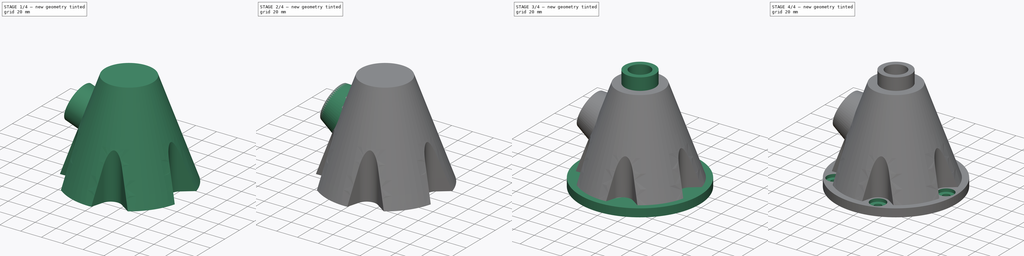
[diagram: build sequence overview — one tinted view per stage of 4, left to right]
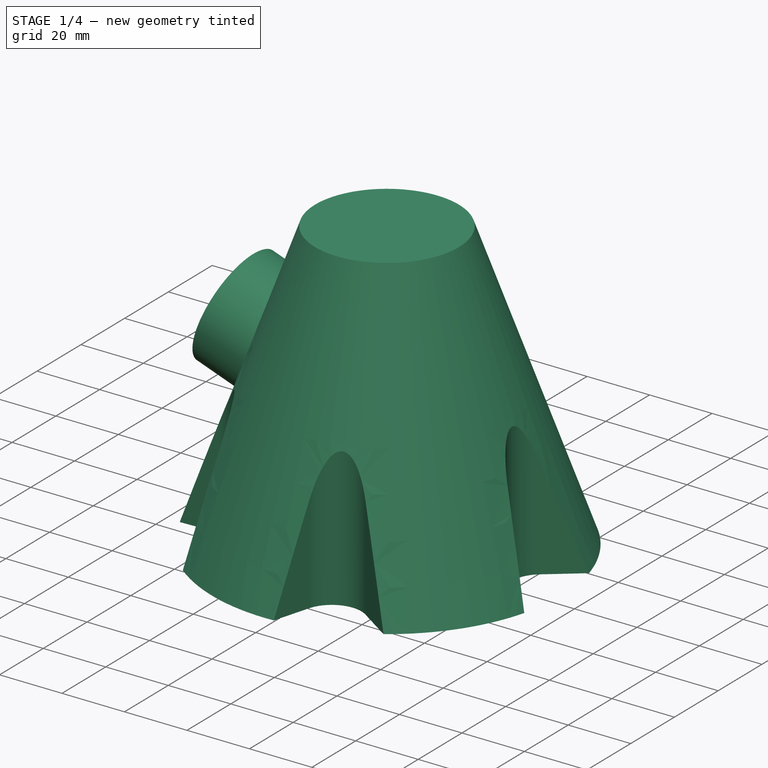
[diagram: stage 1 of 4 — iso view after this stage's code; geometry added in this stage tinted green]
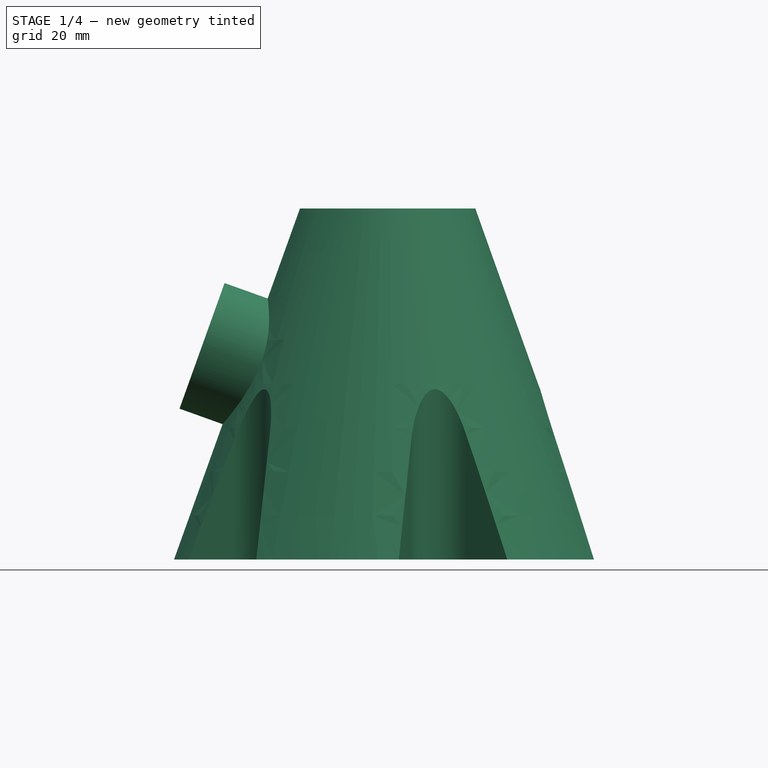
[diagram: stage 1 of 4 — front view after this stage's code; geometry added in this stage tinted green]
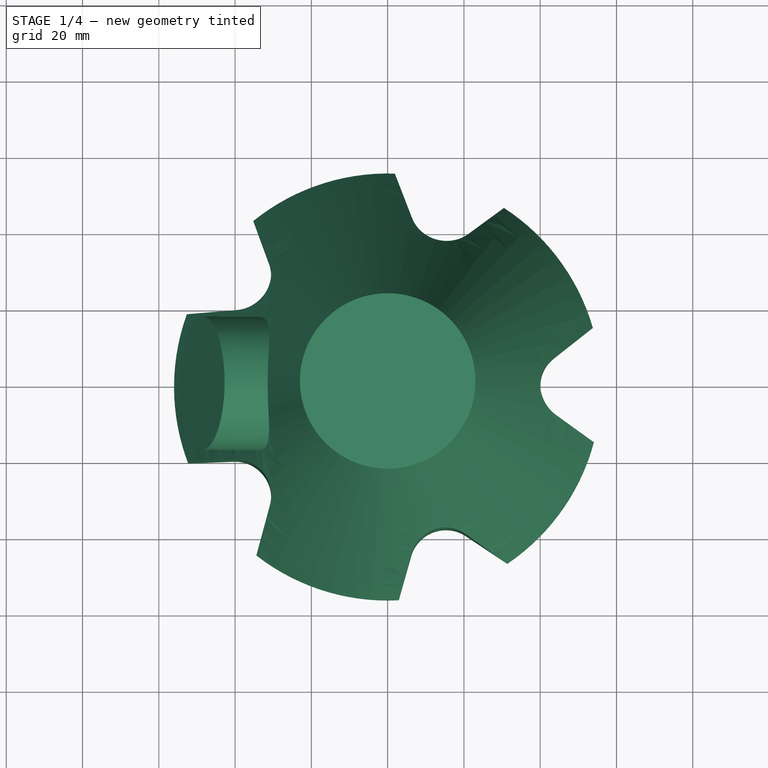
[diagram: stage 1 of 4 — top view after this stage's code; geometry added in this stage tinted green]
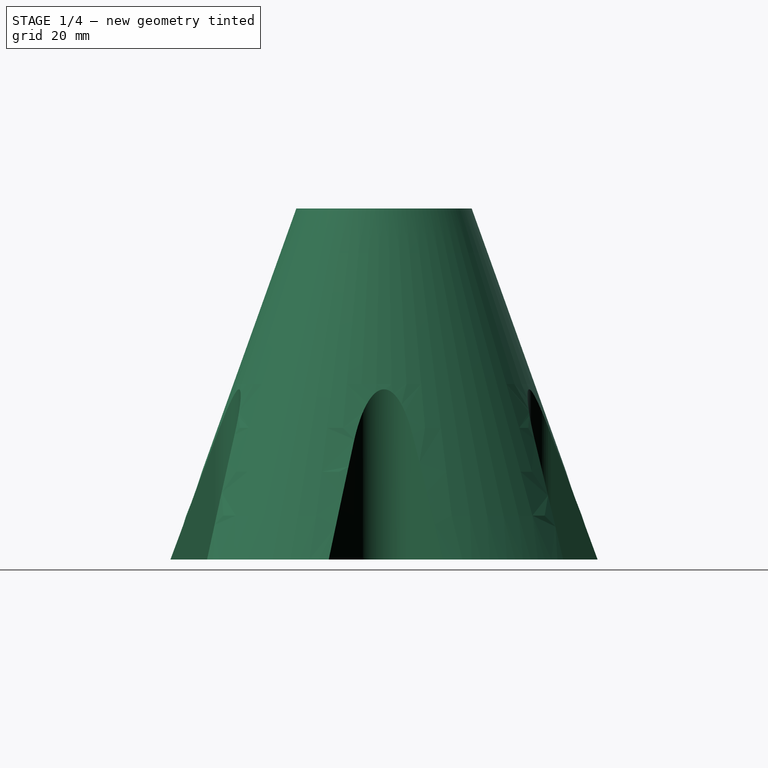
[diagram: stage 1 of 4 — right view after this stage's code; geometry added in this stage tinted green]
FCSTD DOCUMENT  (FreeCAD 0.21R33771 (Git))
Label: ex19
License: All rights reserved
LicenseURL: https://en.wikipedia.org/wiki/All_rights_reserved
objects: Sketcher::SketchObject×11, PartDesign::Pocket×3, PartDesign::PolarPattern×3, PartDesign::Pad×3, PartDesign::Revolution×1, PartDesign::Plane×1, PartDesign::Draft×1, PartDesign::SubtractiveLoft×1, PartDesign::Groove×1, PartDesign::Hole×1, PartDesign::Body×1
note: 38 computed .brp shape members not serialized (recipe doc carries the construction recipe); baked Part::Feature solids carry a one-line shape summary decoded from their .brp

FEATURE [Sketcher::SketchObject] Sketch
  FullyConstrained = true
  MapMode = 5
  Placement = pos=(0,0,0) rot=(1,0,0;1.5708rad)
  Support = -> [XZ_Plane]
  sketch-geometry (4):
    g0: LineSegment StartX=0 StartY=92 StartZ=0 EndX=-23 EndY=92 EndZ=0
    g1: LineSegment StartX=-23 StartY=92 StartZ=0 EndX=-56 EndY=0 EndZ=0
    g2: LineSegment StartX=-56 StartY=0 StartZ=0 EndX=0 EndY=0 EndZ=0
    g3: LineSegment StartX=0 StartY=0 StartZ=0 EndX=0 EndY=92 EndZ=0
  constraints (11):
    c: PointOnObject(g0,g-2)
    c: Horizontal(g0)
    c: Coincident(g0,g1)
    c: PointOnObject(g1,g-1)
    c: Coincident(g1,g2)
    c: Coincident(g2,g-1)
    c: Coincident(g2,g3)
    c: Coincident(g3,g0)
    c: DistanceX(g0,g0) = 23
    c: DistanceX(g2,g2) = 56
    c: DistanceY(g3,g3) = 92
FEATURE [PartDesign::Revolution] Revolution
  Angle = 360
  Axis = (0,2e-16,1)
  Base = (0,0,0)
  Placement = pos=(0,0,0) rot=(1,0,0;1.5708rad)
  Profile = -> Sketch
  ReferenceAxis = -> Sketch [V_Axis]
FEATURE [Sketcher::SketchObject] Sketch001
  ExternalGeometry = -> [Revolution]
  FullyConstrained = false
  MapMode = 5
  Placement = pos=(0,2.04e-14,92) rot=(0,0,1;3.14159rad)
  Support = -> [Revolution]
  sketch-geometry (6):
    g0: ArcOfCircle CenterX=-49.5 CenterY=0 CenterZ=0 NormalX=0 NormalY=0 NormalZ=1 AngleXU=0 Radius=9.5 StartAngle=5.37985 EndAngle=7.24138
    g1: LineSegment StartX=-44.0375 StartY=7.77247 StartZ=0 EndX=-69.1571 EndY=24.5614 EndZ=0
    g2: LineSegment StartX=-43.6195 StartY=-7.46125 StartZ=0 EndX=-69.1571 EndY=-27.5883 EndZ=0
    g3: LineSegment StartX=-69.1571 StartY=24.5614 StartZ=0 EndX=-69.1571 EndY=-27.5883 EndZ=0
    g4: GeomPoint X=-59 Y=0 Z=0
    g5: GeomPoint X=-56 Y=0 Z=0
  constraints (13):
    c: PointOnObject(g0,g-1)
    c: Diameter(g0) = 19
    c: Coincident(g3,g1)
    c: Coincident(g3,g2)
    c: Vertical(g3)
    c: PointOnObject(g4,g0)
    c: PointOnObject(g4,g-1)
    c: PointOnObject(g5,g-3)
    c: PointOnObject(g5,g-1)
    c: DistanceX(g5,g0) = 6.5
    c: Coincident(g0,g1)
    c: Tangent(g0,g2) = 1.5708
    c: Angle(g1,g2) = 1.25664
FEATURE [PartDesign::Pocket] Pocket
  BaseFeature = -> Revolution
  Direction = (0,-2e-16,-1)
  Length = 59
  Length2 = 5
  Midplane = true
  Placement = pos=(0,0,0) rot=(1,0,0;1.5708rad)
  Profile = -> Sketch001
  ReferenceAxis = -> Sketch001 [N_Axis]
  Refine = true
  Type = 1
FEATURE [PartDesign::PolarPattern] PolarPattern
  Angle = 360
  Axis = -> Sketch001 [N_Axis]
  BaseFeature = -> Pocket
  Occurrences = 5
  Originals = -> [Pocket]
  Placement = pos=(0,0,0) rot=(1,0,0;1.5708rad)
  Refine = true
FEATURE [Sketcher::SketchObject] Sketch002
  ExternalGeometry = -> [PolarPattern]
  FullyConstrained = true
  MapMode = 5
  Placement = pos=(0,0,0) rot=(1,0,0;1.5708rad)
  Support = -> [XZ_Plane]
  sketch-geometry (9):
    g0: LineSegment StartX=-23 StartY=92 StartZ=0 EndX=-56 EndY=0 EndZ=0
    g1: LineSegment StartX=-37.3663 StartY=51.9484 StartZ=0 EndX=-48.6617 EndY=56 EndZ=0
    g2: LineSegment StartX=-43.9553 StartY=54.3118 StartZ=0 EndX=-39.3421 EndY=67.1729 EndZ=0
    g3: LineSegment StartX=-39.3421 StartY=67.1729 StartZ=0 EndX=-19.6151 EndY=65.5397 EndZ=0
    g4: LineSegment StartX=-19.6151 StartY=65.5397 StartZ=0 EndX=-25.958 EndY=47.8563 EndZ=0
    g5: LineSegment StartX=-25.958 StartY=47.8563 StartZ=0 EndX=-43.9553 EndY=54.3118 EndZ=0
    g6: LineSegment StartX=-48.6617 StartY=56 StartZ=0 EndX=-42.7531 EndY=72.4724 EndZ=0
    g7: LineSegment StartX=-42.7531 StartY=72.4724 StartZ=0 EndX=-17.8674 EndY=70.4121 EndZ=0
    g8: LineSegment StartX=-17.8674 StartY=70.4121 StartZ=0 EndX=-19.6151 EndY=65.5397 EndZ=0
  constraints (25):
    c: Coincident(g0,g-3)
    c: Coincident(g0,g-5)
    c: PointOnObject(g1,g0)
    c: Perpendicular(g0,g1)
    c: Distance(g1) = 12
    c: DistanceY(g0,g1) = 56
    c: Coincident(g2,g3)
    c: Coincident(g3,g4)
    c: Coincident(g4,g5)
    c: Coincident(g5,g2)
    c: Tangent(g5,g1)
    c: Perpendicular(g1,g2)
    c: Parallel(g0,g4)
    c: Distance(g2,g1) = 5
    c: Coincident(g1,g6)
    c: Coincident(g6,g7)
    c: Coincident(g7,g8)
    c: Coincident(g8,g3)
    c: Parallel(g8,g4)
    c: Distance(g2,g7) = 5
    c: Distance(g6,g1) = 17.5
    c: Parallel(g6,g2)
    c: Distance(g4,g2) = 19.12
    c: Parallel(g3,g7)
    c: Angle(g2,g3) = 1.8326
FEATURE [PartDesign::Plane] DatumPlane
  Length = 145.533
  MapMode = 7
  Placement = pos=(-48.6617,1.24e-14,56) rot=(0.633066,0.633066,0.445482;2.30341rad)
  ResizeMode = 0
  Support = -> [Sketch002]
  Width = 188.814
FEATURE [Sketcher::SketchObject] Sketch003
  FullyConstrained = true
  MapMode = 5
  Placement = pos=(-48.6617,1.24e-14,56) rot=(0.633066,0.633066,0.445482;2.30341rad)
  Support = -> [DatumPlane]
  sketch-geometry (1):
    g0: Circle CenterX=0 CenterY=0 CenterZ=0 NormalX=0 NormalY=0 NormalZ=1 AngleXU=0 Radius=17.5
  constraints (2):
    c: Coincident(g0,g-1)
    c: Diameter(g0) = 35
FEATURE [PartDesign::Pad] Pad
  BaseFeature = -> PolarPattern
  Direction = (0.941278,-3e-16,-0.337632)
  Length = 10
  Length2 = 10
  Placement = pos=(0,0,0) rot=(1,0,0;1.5708rad)
  Profile = -> Sketch003
  ReferenceAxis = -> Sketch003 [N_Axis]
  Refine = true
  Type = 2
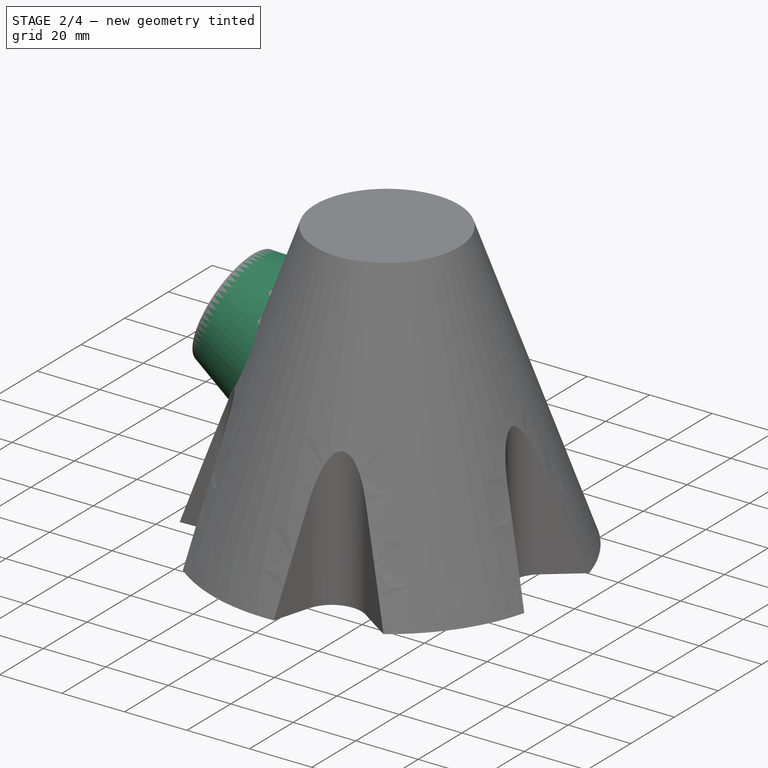
[diagram: stage 2 of 4 — iso view after this stage's code; geometry added in this stage tinted green]
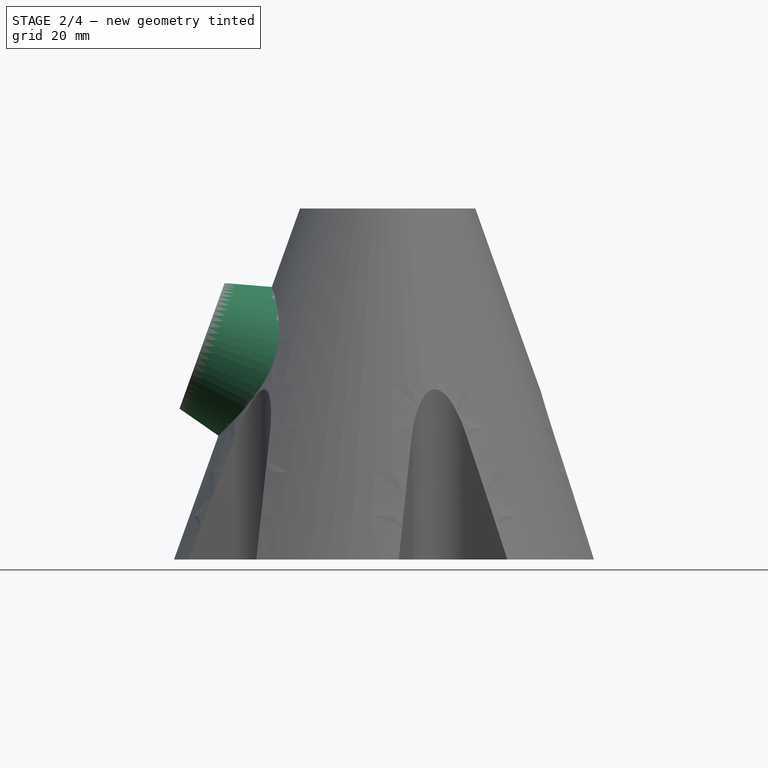
[diagram: stage 2 of 4 — front view after this stage's code; geometry added in this stage tinted green]
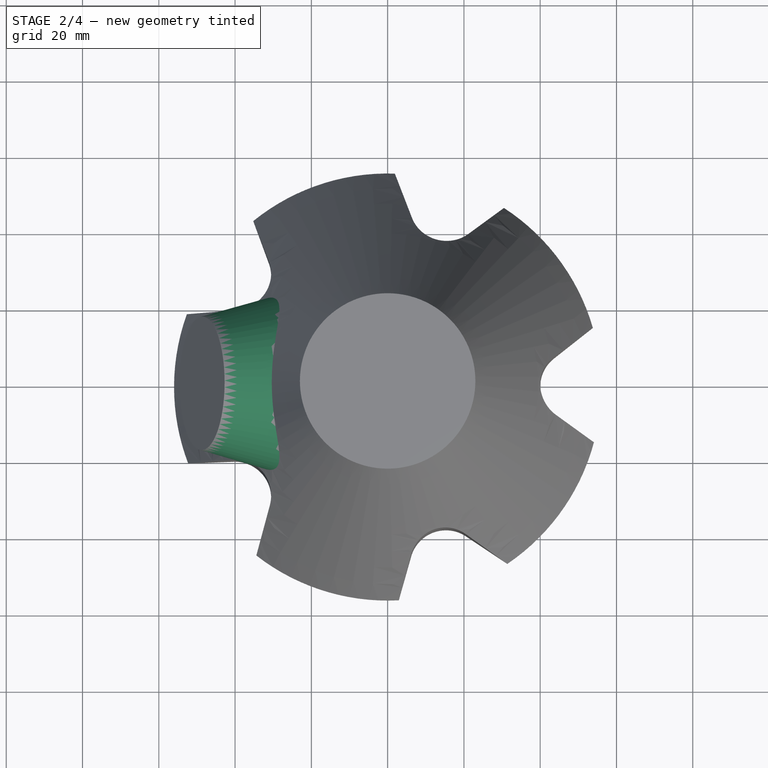
[diagram: stage 2 of 4 — top view after this stage's code; geometry added in this stage tinted green]
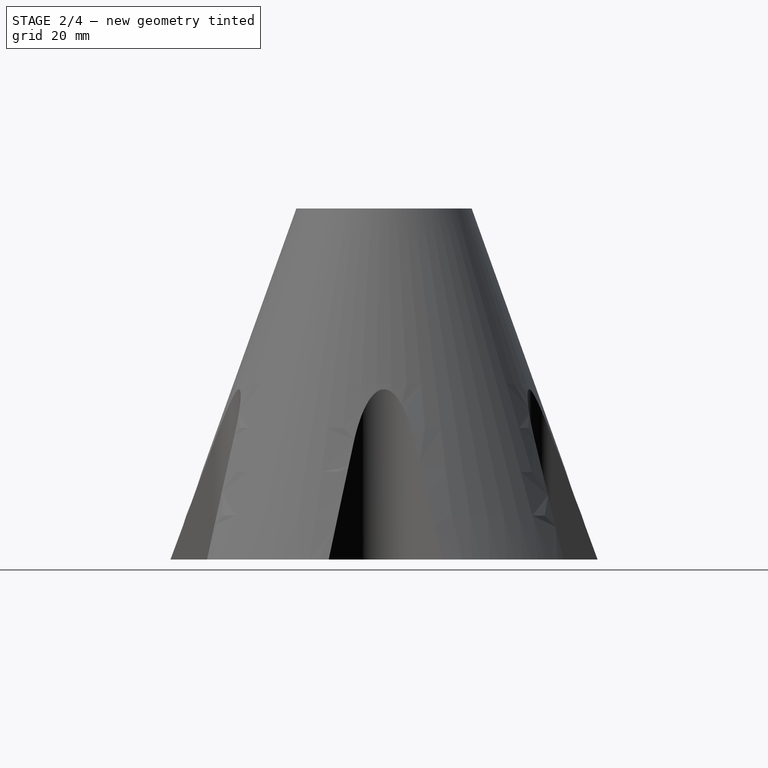
[diagram: stage 2 of 4 — right view after this stage's code; geometry added in this stage tinted green]
FEATURE [PartDesign::Draft] Draft
  Angle = 15
  Base = -> Pad [Face3]
  BaseFeature = -> Pad
  NeutralPlane = -> Pad [Face20]
  Placement = pos=(0,0,0) rot=(1,0,0;1.5708rad)
  Reversed = true
  SupportTransform = false
FEATURE [Sketcher::SketchObject] Sketch004
  ExternalGeometry = -> [Sketch002]
  FullyConstrained = true
  MapMode = 5
  Placement = pos=(0,0,0) rot=(1,0,0;1.5708rad)
  Support = -> [XZ_Plane]
  sketch-geometry (4):
    g0: LineSegment StartX=-39.3421 StartY=67.1729 StartZ=0 EndX=-19.6151 EndY=65.5397 EndZ=0
    g1: LineSegment StartX=-19.6151 StartY=65.5397 StartZ=0 EndX=-25.958 EndY=47.8563 EndZ=0
    g2: LineSegment StartX=-25.958 StartY=47.8563 StartZ=0 EndX=-43.9553 EndY=54.3118 EndZ=0
    g3: LineSegment StartX=-43.9553 StartY=54.3118 StartZ=0 EndX=-39.3421 EndY=67.1729 EndZ=0
  constraints (8):
    c: Coincident(g-3,g0)
    c: Coincident(g0,g-4)
    c: Coincident(g0,g1)
    c: Coincident(g1,g-4)
    c: Coincident(g1,g2)
    c: Coincident(g2,g-3)
    c: Coincident(g2,g3)
    c: Coincident(g3,g0)
FEATURE [Sketcher::SketchObject] Sketch005
  ExternalGeometry = -> [Draft]
  FullyConstrained = false
  MapMode = 5
  Placement = pos=(0,0,0) rot=(1,0,0;3.14159rad)
  Support = -> [Draft]
  sketch-geometry (23):
    g0: ArcOfCircle CenterX=0 CenterY=0 CenterZ=0 NormalX=0 NormalY=0 NormalZ=1 AngleXU=0 Radius=51 StartAngle=2.84453 EndAngle=3.42446
    g1: ArcOfCircle CenterX=-40.0463 CenterY=29.0954 CenterZ=0 NormalX=0 NormalY=0 NormalZ=1 AngleXU=0 Radius=14.5 StartAngle=4.67293 EndAngle=6.5582
    g2: ArcOfCircle CenterX=-40.0463 CenterY=-29.0954 CenterZ=0 NormalX=0 NormalY=0 NormalZ=1 AngleXU=0 Radius=14.5 StartAngle=5.92956 EndAngle=7.81484
    g3: ArcOfCircle CenterX=15.2963 CenterY=-47.0773 CenterZ=0 NormalX=0 NormalY=0 NormalZ=1 AngleXU=0 Radius=14.5 StartAngle=0.903014 EndAngle=2.78829
    g4: ArcOfCircle CenterX=49.5 CenterY=0 CenterZ=0 NormalX=0 NormalY=0 NormalZ=1 AngleXU=0 Radius=14.5 StartAngle=2.15965 EndAngle=4.04493
    g5: ArcOfCircle CenterX=15.2963 CenterY=47.0773 CenterZ=0 NormalX=0 NormalY=0 NormalZ=1 AngleXU=0 Radius=14.5 StartAngle=3.41629 EndAngle=5.30156
    g6: LineSegment StartX=0 StartY=0 StartZ=0 EndX=-48.9443 EndY=35.5601 EndZ=0
    g7: GeomPoint X=-32.3607 Y=23.5114 Z=0
    g8: GeomPoint X=-28.3156 Y=20.5725 Z=0
    g9: LineSegment StartX=-26.0912 StartY=33.033 StartZ=0 EndX=-28.6715 EndY=42.1775 EndZ=0
    g10: LineSegment StartX=-40.6184 StartY=14.6067 StartZ=0 EndX=-48.7662 EndY=14.9284 EndZ=0
    g11: LineSegment StartX=1.33998 StartY=43.1441 StartZ=0 EndX=-0.871865 EndY=50.9925 EndZ=0
    g12: LineSegment StartX=23.3536 StartY=35.022 StartZ=0 EndX=31.2532 EndY=40.3018 EndZ=0
    g13: ArcOfCircle CenterX=0 CenterY=0 CenterZ=0 NormalX=0 NormalY=0 NormalZ=1 AngleXU=0 Radius=51 StartAngle=1.58789 EndAngle=2.16782
    g14: LineSegment StartX=41.4466 StartY=12.0579 StartZ=0 EndX=48.2274 EndY=16.5868 EndZ=0
    g15: LineSegment StartX=40.5246 StartY=-11.3882 StartZ=0 EndX=47.9871 EndY=-17.2697 EndZ=0
    g16: ArcOfCircle CenterX=0 CenterY=0 CenterZ=0 NormalX=0 NormalY=0 NormalZ=1 AngleXU=0 Radius=51 StartAngle=0.331255 EndAngle=0.911186
    g17: LineSegment StartX=24.2754 StartY=-35.6919 StartZ=0 EndX=30.678 EndY=-40.7414 EndZ=0
    g18: LineSegment StartX=1.69194 StartY=-42.0603 StartZ=0 EndX=-1.59561 EndY=-50.975 EndZ=0
    g19: ArcOfCircle CenterX=0 CenterY=0 CenterZ=0 NormalX=0 NormalY=0 NormalZ=1 AngleXU=0 Radius=51 StartAngle=5.3578 EndAngle=5.93773
    g20: LineSegment StartX=-26.4435 StartY=-34.1167 StartZ=0 EndX=-29.2673 EndY=-41.7663 EndZ=0
    g21: LineSegment StartX=-39.4789 StartY=-14.6065 StartZ=0 EndX=-48.9732 EndY=-14.2346 EndZ=0
    g22: ArcOfCircle CenterX=0 CenterY=0 CenterZ=0 NormalX=0 NormalY=0 NormalZ=1 AngleXU=0 Radius=51 StartAngle=4.10117 EndAngle=4.6811
  constraints (61):
    c: Coincident(g0,g-1)
    c: Diameter(g0) = 102
    c: Coincident(g1,g-3)
    c: Coincident(g2,g-6)
    c: Coincident(g3,g-7)
    c: Coincident(g4,g-5)
    c: Coincident(g5,g-4)
    c: Equal(g5,g1)
    c: Equal(g1,g2)
    c: Equal(g2,g3)
    c: Equal(g3,g4)
    c: Coincident(g6,g0)
    c: PointOnObject(g1,g6)
    c: PointOnObject(g7,g-3)
    c: PointOnObject(g8,g1)
    c: PointOnObject(g7,g6)
    c: PointOnObject(g8,g6)
    c: Tangent(g1,g10) = 1.5708
    c: Tangent(g1,g9) = -1.5708
    c: Coincident(g0,g10)
    c: Coincident(g13,g9)
    c: Distance(g0,g-8) = 5
    c: Distance(g13,g-9) = 5
    c: PointOnObject(g11,g0)
    c: Tangent(g5,g11) = 1.5708
    c: Tangent(g5,g12) = -1.5708
    c: Distance(g12,g-11) = 5
    c: Distance(g11,g-10) = 5
    c: Equal(g0,g13)
    c: Coincident(g0,g13)
    c: PointOnObject(g13,g11)
    c: Coincident(g16,g12)
    c: PointOnObject(g14,g0)
    c: Tangent(g4,g15) = -1.5708
    c: Tangent(g4,g14) = 1.5708
    c: Distance(g14,g-12) = 5
    c: Distance(g15,g-13) = 5
    c: Equal(g0,g16)
    c: Coincident(g0,g16)
    c: PointOnObject(g16,g14)
    c: Coincident(g19,g15)
    c: PointOnObject(g17,g0)
    c: Equal(g0,g19)
    c: Coincident(g0,g19)
    c: Tangent(g3,g17) = 1.5708
    c: PointOnObject(g19,g17)
    c: Coincident(g22,g18)
    c: Tangent(g3,g18) = -1.5708
    c: Distance(g17,g-14) = 5
    c: Distance(g22,g-15) = 5
    c: PointOnObject(g20,g0)
    c: Tangent(g2,g21) = -1.5708
    c: Equal(g0,g22)
    c: Coincident(g0,g22)
    c: PointOnObject(g22,g20)
    c: Tangent(g2,g20) = 1.5708
    c: Distance(g20,g-16) = 5
    c: Coincident(g0,g21)
    c: Distance(g0,g-17) = 5
    c: Diameter(g-3) = 19
    c: Distance(g8,g0) = 35
FEATURE [Sketcher::SketchObject] Sketch006
  AttachmentOffset = pos=(0,0,-2) rot=(0,0,1;0rad)
  ExternalGeometry = -> [Draft]
  FullyConstrained = true
  MapMode = 5
  Placement = pos=(0,2e-14,90) rot=(0,0,1;3.14159rad)
  Support = -> [Draft]
  sketch-geometry (3):
    g0: Circle CenterX=0 CenterY=0 CenterZ=0 NormalX=0 NormalY=0 NormalZ=1 AngleXU=0 Radius=21
    g1: GeomPoint X=23 Y=0 Z=0
    g2: GeomPoint X=21 Y=0 Z=0
  constraints (6):
    c: Coincident(g0,g-3)
    c: PointOnObject(g1,g-3)
    c: PointOnObject(g2,g0)
    c: PointOnObject(g1,g-1)
    c: PointOnObject(g2,g-1)
    c: DistanceX(g2,g1) = 2
FEATURE [PartDesign::SubtractiveLoft] SubtractiveLoft
  BaseFeature = -> Draft
  Closed = false
  Placement = pos=(0,0,0) rot=(1,0,0;1.5708rad)
  Profile = -> Sketch005
  Ruled = false
  Sections = -> [Sketch006]
FEATURE [PartDesign::Groove] Groove
  Angle = 360
  Axis = (0.941278,-2e-16,-0.337632)
  Base = (-48.6617,1.24e-14,56)
  BaseFeature = -> SubtractiveLoft
  Placement = pos=(0,0,0) rot=(1,0,0;1.5708rad)
  Profile = -> Sketch004
  ReferenceAxis = -> SubtractiveLoft [Edge33]
  Reversed = true
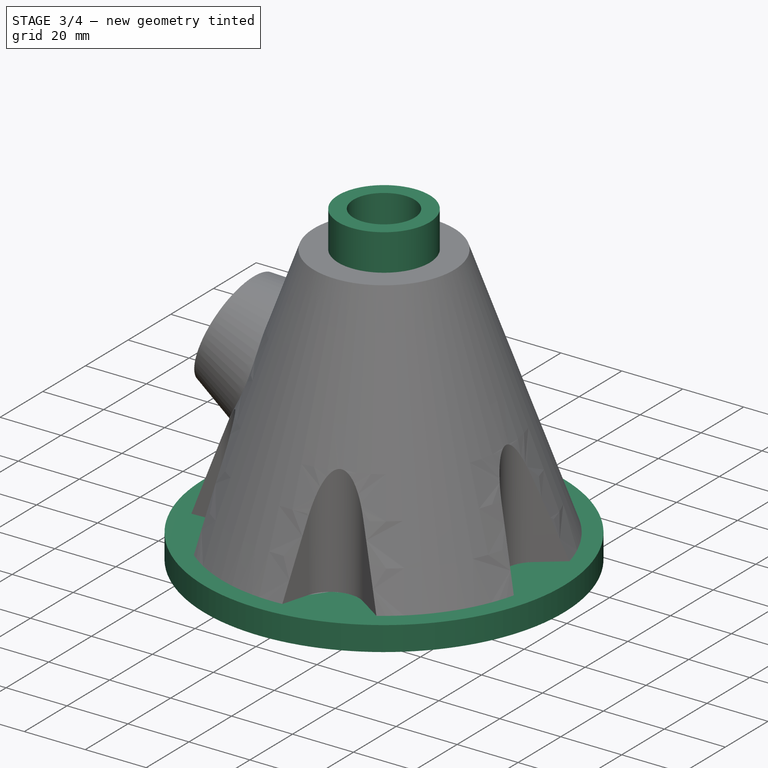
[diagram: stage 3 of 4 — iso view after this stage's code; geometry added in this stage tinted green]
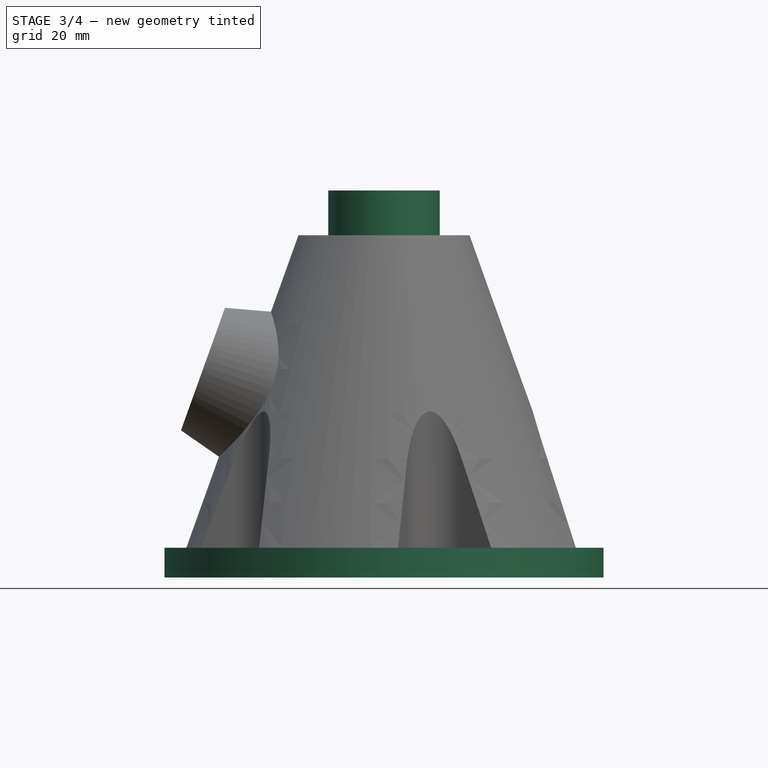
[diagram: stage 3 of 4 — front view after this stage's code; geometry added in this stage tinted green]
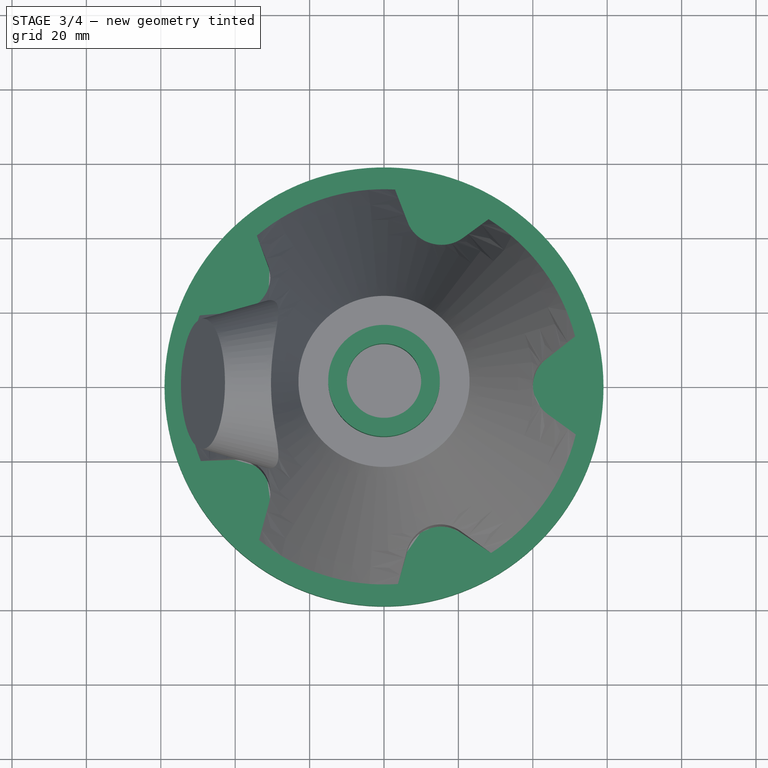
[diagram: stage 3 of 4 — top view after this stage's code; geometry added in this stage tinted green]
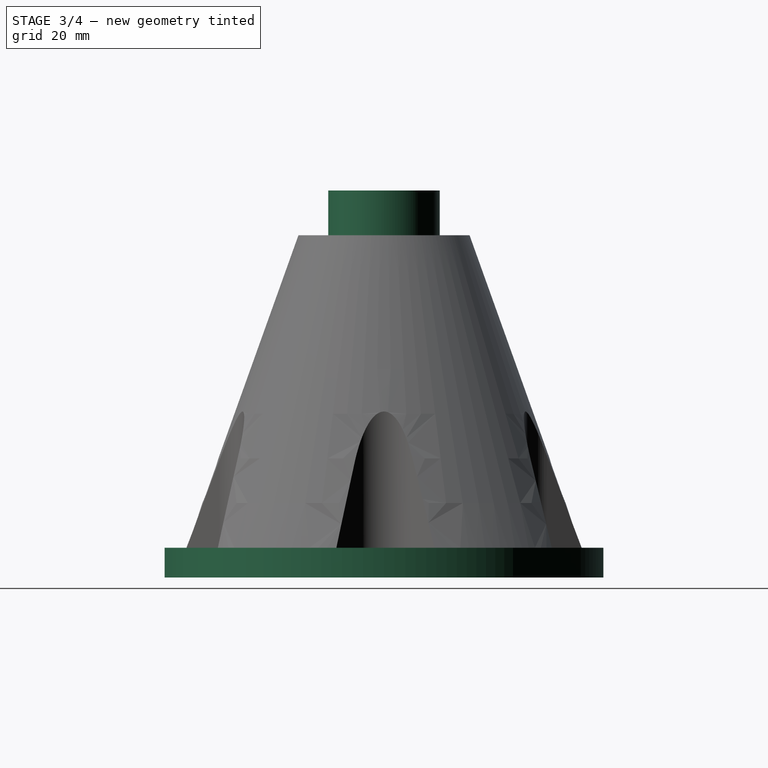
[diagram: stage 3 of 4 — right view after this stage's code; geometry added in this stage tinted green]
FEATURE [Sketcher::SketchObject] Sketch007
  ExternalGeometry = -> [Groove]
  FullyConstrained = false
  MapMode = 5
  Placement = pos=(0,0,0) rot=(1,0,0;3.14159rad)
  Support = -> [Groove]
  sketch-geometry (8):
    g0: ArcOfCircle CenterX=0 CenterY=0 CenterZ=0 NormalX=0 NormalY=0 NormalZ=1 AngleXU=0 Radius=59 StartAngle=5.65487 EndAngle=6.9115
    g1: LineSegment StartX=41.2599 StartY=29.977 StartZ=0 EndX=47.732 EndY=34.6793 EndZ=0
    g2: LineSegment StartX=47.732 StartY=-34.6793 StartZ=0 EndX=41.2599 EndY=-29.977 EndZ=0
    g3: ArcOfCircle CenterX=1.85e-14 CenterY=8.5e-15 CenterZ=0 NormalX=0 NormalY=0 NormalZ=1 AngleXU=0 Radius=51 StartAngle=0.331258 EndAngle=0.628319
    g4: LineSegment StartX=48.2273 StartY=16.5869 StartZ=0 EndX=41.4466 EndY=12.0579 EndZ=0
    g5: ArcOfCircle CenterX=49.5 CenterY=0 CenterZ=0 NormalX=0 NormalY=0 NormalZ=1 AngleXU=0 Radius=14.5 StartAngle=2.15965 EndAngle=4.04493
    g6: LineSegment StartX=40.5246 StartY=-11.3882 StartZ=0 EndX=47.9871 EndY=-17.2697 EndZ=0
    g7: ArcOfCircle CenterX=0 CenterY=0 CenterZ=0 NormalX=0 NormalY=0 NormalZ=1 AngleXU=0 Radius=51 StartAngle=5.65487 EndAngle=5.93773
  constraints (19):
    c: Coincident(g0,g-1)
    c: Coincident(g1,g3)
    c: Coincident(g1,g0)
    c: Coincident(g2,g0)
    c: Perpendicular(g0,g2)
    c: Perpendicular(g0,g1)
    c: Tangent(g3,g-4) = -1.5708
    c: PointOnObject(g1,g-4)
    c: Angle(g2,g1) = 1.25664
    c: Vertical(g2,g1)
    c: Diameter(g0) = 118
    c: Coincident(g4,g3)
    c: Coincident(g4,g-6)
    c: Coincident(g5,g-5)
    c: Coincident(g5,g4)
    c: Coincident(g6,g5)
    c: Coincident(g7,g0)
    c: Coincident(g7,g6)
    c: Coincident(g7,g2)
FEATURE [PartDesign::Pad] Pad001
  BaseFeature = -> Groove
  Direction = (0,-2e-16,-1)
  Length = 8
  Length2 = 10
  Placement = pos=(0,0,0) rot=(1,0,0;1.5708rad)
  Profile = -> Sketch007
  ReferenceAxis = -> Sketch007 [N_Axis]
  Reversed = true
  Type = 0
FEATURE [PartDesign::PolarPattern] PolarPattern001
  Angle = 360
  Axis = -> Sketch007 [N_Axis]
  BaseFeature = -> Pad001
  Occurrences = 5
  Originals = -> [Pad001]
  Placement = pos=(0,0,0) rot=(1,0,0;1.5708rad)
FEATURE [Sketcher::SketchObject] Sketch008
  FullyConstrained = true
  MapMode = 5
  Placement = pos=(0,2.04e-14,92) rot=(0,0,1;3.14159rad)
  Support = -> [PolarPattern001]
  sketch-geometry (2):
    g0: Circle CenterX=0 CenterY=0 CenterZ=0 NormalX=0 NormalY=0 NormalZ=1 AngleXU=0 Radius=15
    g1: Circle CenterX=0 CenterY=0 CenterZ=0 NormalX=0 NormalY=0 NormalZ=1 AngleXU=0 Radius=10
  constraints (4):
    c: Coincident(g0,g-1)
    c: Coincident(g1,g0)
    c: Diameter(g0) = 30
    c: Diameter(g1) = 20
FEATURE [PartDesign::Pad] Pad002
  BaseFeature = -> PolarPattern001
  Direction = (0,2e-16,1)
  Length = 12
  Length2 = 10
  Placement = pos=(0,0,0) rot=(1,0,0;1.5708rad)
  Profile = -> Sketch008
  ReferenceAxis = -> Sketch008 [N_Axis]
  Type = 0
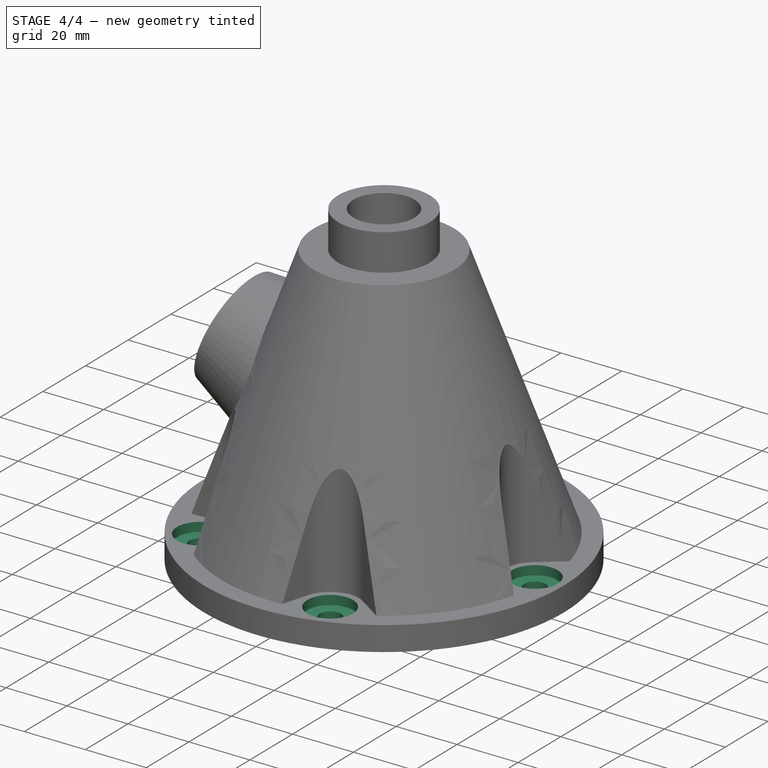
[diagram: stage 4 of 4 — iso view after this stage's code; geometry added in this stage tinted green]
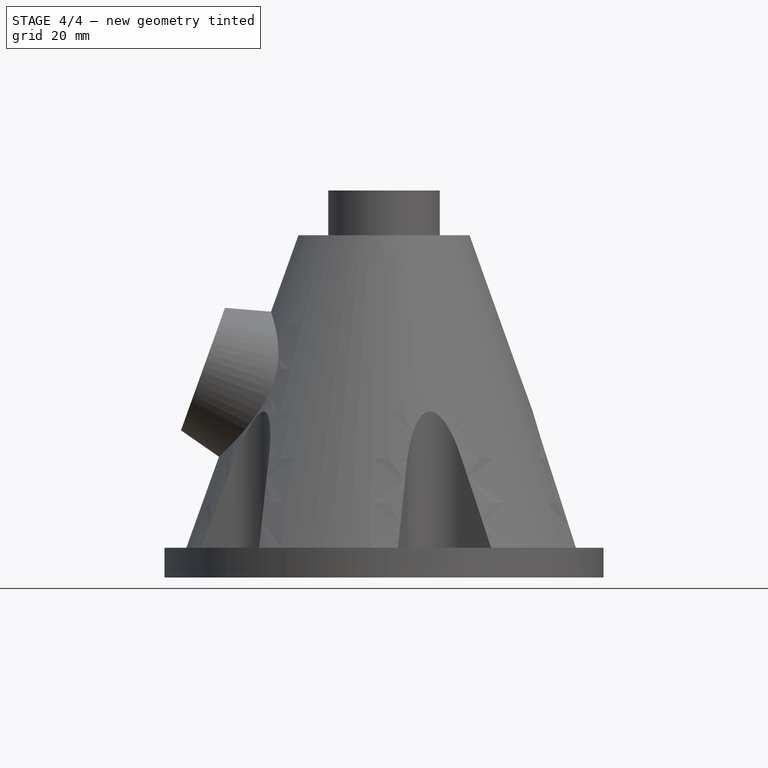
[diagram: stage 4 of 4 — front view after this stage's code; geometry added in this stage tinted green]
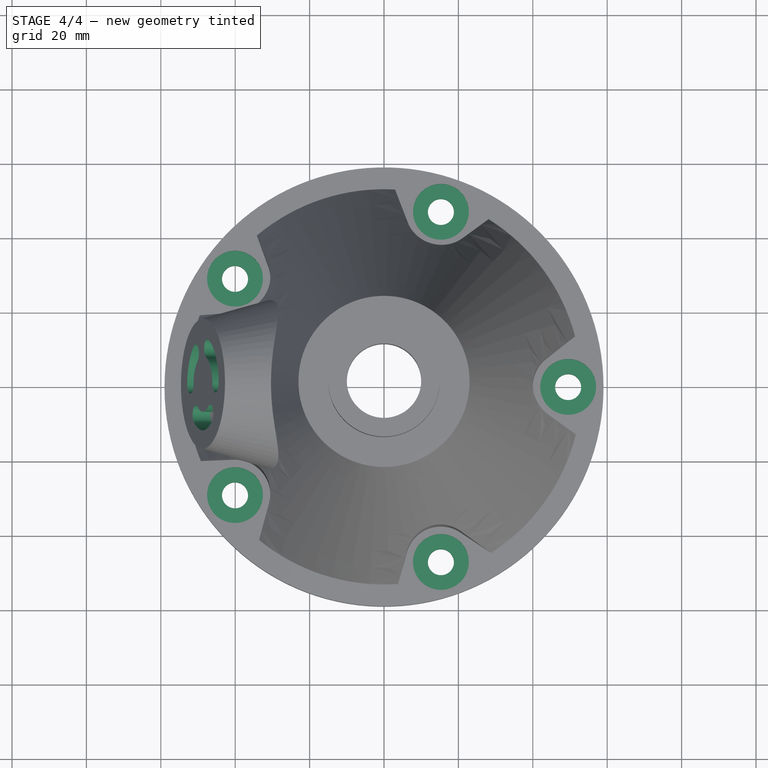
[diagram: stage 4 of 4 — top view after this stage's code; geometry added in this stage tinted green]
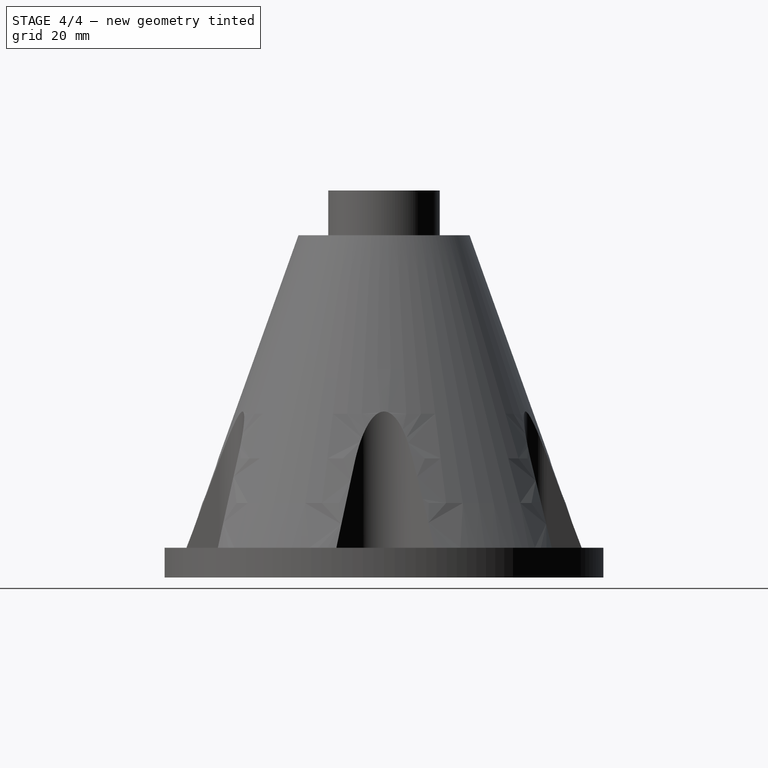
[diagram: stage 4 of 4 — right view after this stage's code; geometry added in this stage tinted green]
FEATURE [PartDesign::Pocket] Pocket001
  BaseFeature = -> Pad002
  Direction = (0,0,-1)
  Length = 5
  Length2 = 5
  Placement = pos=(0,0,0) rot=(1,0,0;1.5708rad)
  Profile = -> Pad002 [Edge89]
  Refine = true
  Type = 1
FEATURE [Sketcher::SketchObject] Sketch009
  ExternalGeometry = -> [Pocket001]
  FullyConstrained = false
  MapMode = 5
  Placement = pos=(-1e-16,1.8e-15,8) rot=(0,0,1;3.14159rad)
  Support = -> [Pocket001]
  sketch-geometry (1):
    g0: Circle CenterX=40.0463 CenterY=-29.0954 CenterZ=0 NormalX=0 NormalY=0 NormalZ=1 AngleXU=0 Radius=5.8708
  constraints (1):
    c: Coincident(g0,g-10)
FEATURE [PartDesign::Hole] Hole
  BaseFeature = -> Pocket001
  CustomThreadClearance = 0
  Depth = 397.021
  DepthType = 1
  Diameter = 7
  DrillForDepth = false
  DrillPoint = 1
  DrillPointAngle = 118
  HoleCutCountersinkAngle = 90
  HoleCutCustomValues = false
  HoleCutDepth = 3
  HoleCutDiameter = 15
  HoleCutType = 1
  ModelThread = false
  Placement = pos=(0,0,0) rot=(1,0,0;1.5708rad)
  Profile = -> Sketch009
  Tapered = false
  TaperedAngle = 90
  ThreadClass = 0
  ThreadDepth = 397.021
  ThreadDepthType = 0
  ThreadDirection = 0
  ThreadFit = 0
  ThreadSize = 0
  ThreadType = 0
  Threaded = false
  UseCustomThreadClearance = false
FEATURE [PartDesign::PolarPattern] PolarPattern002
  Angle = 360
  Axis = -> Sketch009 [N_Axis]
  BaseFeature = -> Hole
  Occurrences = 5
  Originals = -> [Hole]
  Placement = pos=(0,0,0) rot=(1,0,0;1.5708rad)
FEATURE [Sketcher::SketchObject] Sketch010
  ExternalGeometry = -> [PolarPattern002]
  FullyConstrained = false
  MapMode = 5
  Placement = pos=(-60.9116,8.3e-15,21.8487) rot=(-0.575486,0,0.817812;3.14159rad)
  Support = -> [PolarPattern002]
  sketch-geometry (27):
    g0: LineSegment StartX=-30.5461 StartY=-8.19152 StartZ=0 EndX=-26.2818 EndY=0 EndZ=0
    g1: LineSegment StartX=-26.2818 StartY=0 StartZ=0 EndX=-30.5461 EndY=8.19152 EndZ=0
    g2: LineSegment StartX=-30.5461 StartY=8.19152 StartZ=0 EndX=-42.0176 EndY=8.19152 EndZ=0
    g3: LineSegment StartX=-42.0176 StartY=8.19152 StartZ=0 EndX=-46.2818 EndY=-5.3e-15 EndZ=0
    g4: LineSegment StartX=-46.2818 StartY=-5.8e-15 StartZ=0 EndX=-39.702 EndY=-9.39693 EndZ=0
    g5: LineSegment StartX=-39.702 StartY=-9.39693 StartZ=0 EndX=-30.5461 EndY=-8.19152 EndZ=0
    g6: Circle CenterX=-36.2818 CenterY=-5.8e-15 CenterZ=0 NormalX=0 NormalY=0 NormalZ=1 AngleXU=0 Radius=10
    g7: ArcOfCircle CenterX=-46.2818 CenterY=-5.8e-15 CenterZ=0 NormalX=0 NormalY=0 NormalZ=1 AngleXU=0 Radius=2.5 StartAngle=0 EndAngle=3.13179
    g8: ArcOfCircle CenterX=-42.0176 CenterY=8.19152 CenterZ=0 NormalX=0 NormalY=0 NormalZ=1 AngleXU=0 Radius=2.5 StartAngle=2.17186 EndAngle=3.87779
    g9: ArcOfCircle CenterX=-30.5461 CenterY=8.19152 CenterZ=0 NormalX=0 NormalY=0 NormalZ=1 AngleXU=0 Radius=2.5 StartAngle=4.23235 EndAngle=7.23331
    g10: ArcOfCircle CenterX=-30.5461 CenterY=-8.19152 CenterZ=0 NormalX=0 NormalY=0 NormalZ=1 AngleXU=0 Radius=2.49996 StartAngle=2.18166 EndAngle=5.3159
    g11: ArcOfCircle CenterX=-39.702 CenterY=-9.39693 CenterZ=0 NormalX=0 NormalY=0 NormalZ=1 AngleXU=0 Radius=2.5 StartAngle=4.37313 EndAngle=7.50492
    g12: LineSegment StartX=-42.0176 StartY=8.19152 StartZ=0 EndX=-36.2818 EndY=-5.3e-15 EndZ=0
    g13: LineSegment StartX=-30.5461 StartY=8.19152 StartZ=0 EndX=-36.2818 EndY=-5.3e-15 EndZ=0
    g14: LineSegment StartX=-46.2818 StartY=-5.8e-15 StartZ=0 EndX=-36.2818 EndY=-5.8e-15 EndZ=0
    g15: LineSegment StartX=-36.2818 StartY=-5.8e-15 StartZ=0 EndX=-39.702 EndY=-9.39693 EndZ=0
    g16: LineSegment StartX=-36.2818 StartY=-5.8e-15 StartZ=0 EndX=-26.2818 EndY=2.67949 EndZ=0
    g17: LineSegment StartX=-36.2818 StartY=-5.8e-15 StartZ=0 EndX=-30.5461 EndY=-8.19152 EndZ=0
    g18: ArcOfCircle CenterX=-36.2818 CenterY=-5.8e-15 CenterZ=0 NormalX=0 NormalY=0 NormalZ=1 AngleXU=0 Radius=12.4999 StartAngle=3.13963 EndAngle=4.36528
    g19: ArcOfCircle CenterX=-36.2818 CenterY=-5.8e-15 CenterZ=0 NormalX=0 NormalY=0 NormalZ=1 AngleXU=0 Radius=7.5 StartAngle=3.14159 EndAngle=4.36332
    g20: ArcOfCircle CenterX=-36.2818 CenterY=-5.8e-15 CenterZ=0 NormalX=0 NormalY=0 NormalZ=1 AngleXU=0 Radius=7.52843 StartAngle=0.916598 EndAngle=2.225
    g21: ArcOfCircle CenterX=-36.2818 CenterY=-5.8e-15 CenterZ=0 NormalX=0 NormalY=0 NormalZ=1 AngleXU=0 Radius=12.4999 StartAngle=0.957971 EndAngle=2.1797
    g22: ArcOfCircle CenterX=-36.2818 CenterY=-5.8e-15 CenterZ=0 NormalX=0 NormalY=0 NormalZ=1 AngleXU=0 Radius=7.50004 StartAngle=5.32325 EndAngle=6.28151
    g23: ArcOfCircle CenterX=-36.2818 CenterY=-5.8e-15 CenterZ=0 NormalX=0 NormalY=0 NormalZ=1 AngleXU=0 Radius=12.4999 StartAngle=5.32178 EndAngle=6.28515
    g24: ArcOfCircle CenterX=-42.0176 CenterY=8.19152 CenterZ=0 NormalX=0 NormalY=0 NormalZ=1 AngleXU=0 Radius=2.5 StartAngle=4.23242 EndAngle=5.19243
    g25: ArcOfCircle CenterX=-42.0176 CenterY=8.19152 CenterZ=0 NormalX=0 NormalY=0 NormalZ=1 AngleXU=0 Radius=2.5 StartAngle=3.87779 EndAngle=4.23242
    g26: ArcOfCircle CenterX=-26.2818 CenterY=0 CenterZ=0 NormalX=0 NormalY=0 NormalZ=1 AngleXU=0 Radius=2.5 StartAngle=0.009803 EndAngle=3.14661
  constraints (68):
    c: Coincident(g0,g1)
    c: Coincident(g1,g2)
    c: Coincident(g2,g3)
    c: Coincident(g3,g4)
    c: Coincident(g4,g5)
    c: Coincident(g5,g0)
    c: PointOnObject(g0,g6)
    c: PointOnObject(g1,g6)
    c: PointOnObject(g2,g6)
    c: PointOnObject(g3,g6)
    c: PointOnObject(g4,g6)
    c: PointOnObject(g5,g6)
    c: Coincident(g6,g-3)
    c: Diameter(g6) = 20
    c: PointOnObject(g0,g-1)
    c: Coincident(g7,g3)
    c: Coincident(g8,g2)
    c: Coincident(g9,g1)
    c: Coincident(g10,g0)
    c: Coincident(g11,g4)
    c: Equal(g9,g8)
    c: Equal(g8,g7)
    c: Coincident(g12,g8)
    c: Coincident(g12,g6)
    c: Coincident(g13,g9)
    c: Coincident(g13,g6)
    c: Angle(g13,g12) = 1.22173
    c: Parallel(g2,g-1)
    c: Coincident(g14,g7)
    c: Coincident(g14,g6)
    c: Horizontal(g14)
    c: Coincident(g15,g6)
    c: Coincident(g15,g11)
    c: Angle(g14,g15) = 1.22173
    c: Coincident(g16,g6)
    c: Coincident(g17,g6)
    c: Coincident(g17,g10)
    c: Angle(g17,g16) = 1.22173
    c: Coincident(g18,g6)
    c: Coincident(g19,g18)
    c: Coincident(g19,g20)
    c: Equal(g18,g21)
    c: Coincident(g18,g21)
    c: Coincident(g19,g22)
    c: Equal(g18,g23)
    c: Coincident(g18,g23)
    c: Coincident(g7,g18)
    c: Coincident(g11,g18)
    c: Coincident(g10,g23)
    c: Coincident(g24,g20)
    c: Coincident(g8,g21)
    c: PointOnObject(g8,g6)
    c: PointOnObject(g24,g3)
    c: Coincident(g8,g24)
    c: Coincident(g9,g21)
    c: Coincident(g9,g20)
    c: Coincident(g25,g8)
    c: Coincident(g25,g8)
    c: Coincident(g25,g24)
    c: Tangent(g10,g22) = 1.5708
    c: Tangent(g11,g19) = 1.5708
    c: Tangent(g19,g7) = 1.5708
    c: Coincident(g26,g0)
    c: Coincident(g26,g22)
    c: Coincident(g26,g23)
    c: Equal(g26,g9)
    c: Diameter(g26) = 5
    c: Equal(g3,g5)
FEATURE [PartDesign::Pocket] Pocket002
  BaseFeature = -> PolarPattern002
  Direction = (0.941278,-1e-16,-0.337632)
  Length = 5
  Length2 = 5
  Placement = pos=(0,0,0) rot=(1,0,0;1.5708rad)
  Profile = -> Sketch010
  ReferenceAxis = -> Sketch010 [N_Axis]
  Type = 0
FEATURE [PartDesign::Body] Body
  Group = -> [Sketch,Revolution,Sketch001,Pocket,PolarPattern,Sketch002,DatumPlane,Sketch003,Pad,Draft,Sketch004,Sketch005,Sketch006,SubtractiveLoft,Groove,Sketch007,Pad001,PolarPattern001,Sketch008,Pad002,Pocket001,Sketch009,Hole,PolarPattern002,Sketch010,Pocket002]
  Origin = -> Origin
  Tip = -> Pocket002
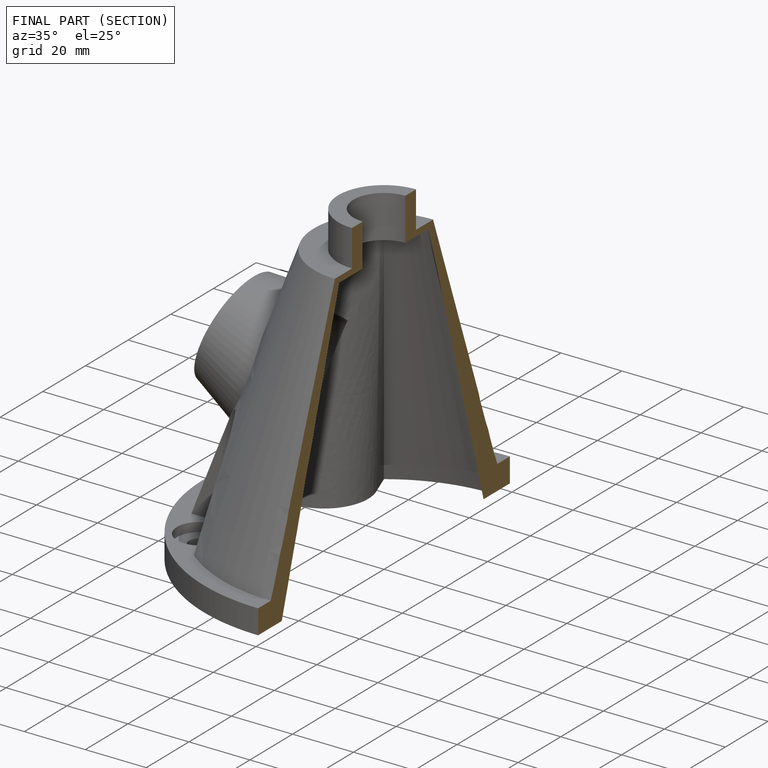
[diagram: finished part — half-section view (interior)]
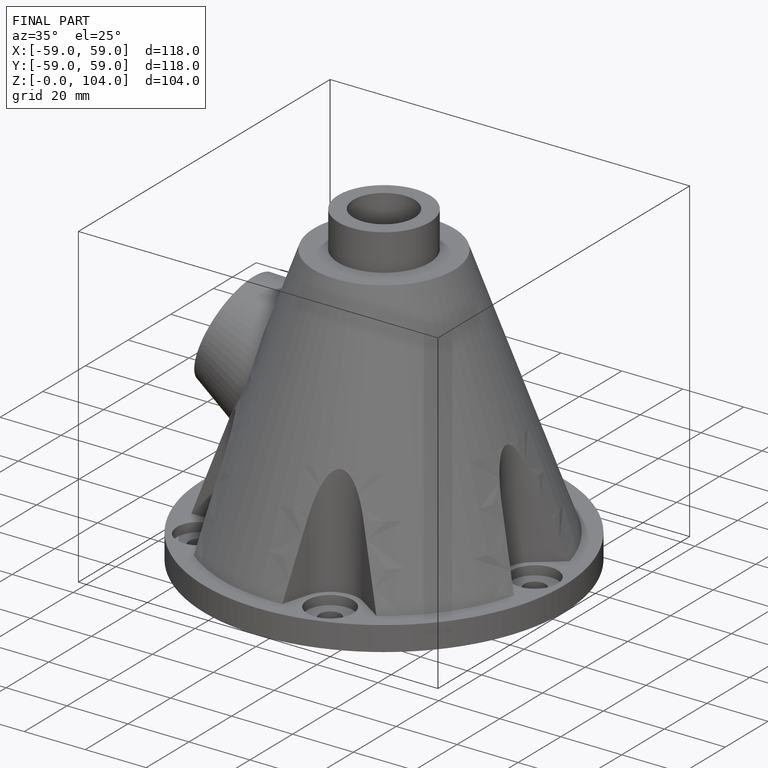
[diagram: finished part — iso view with bounding-box wireframe]
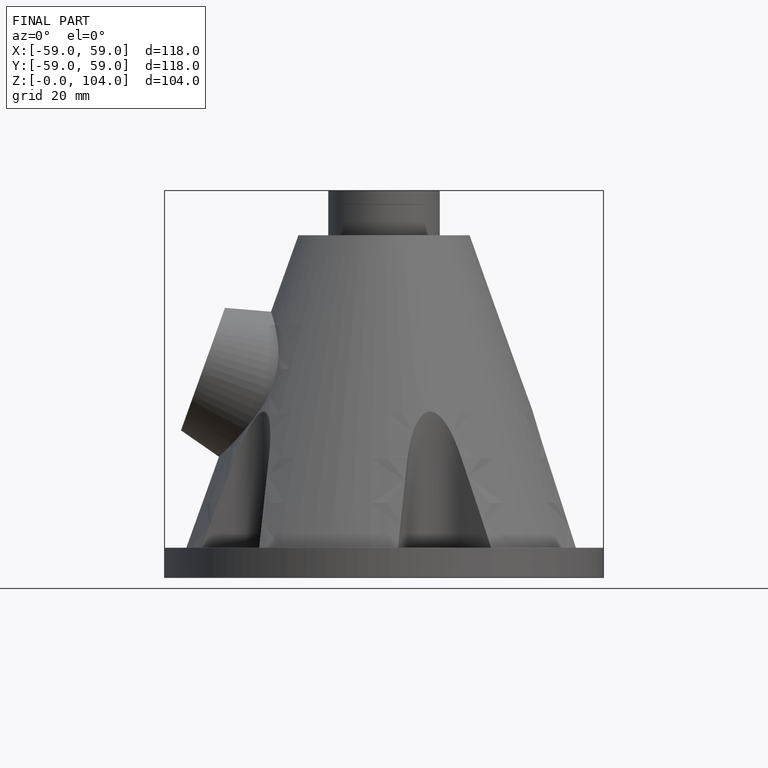
[diagram: finished part — front view with bounding-box wireframe]
